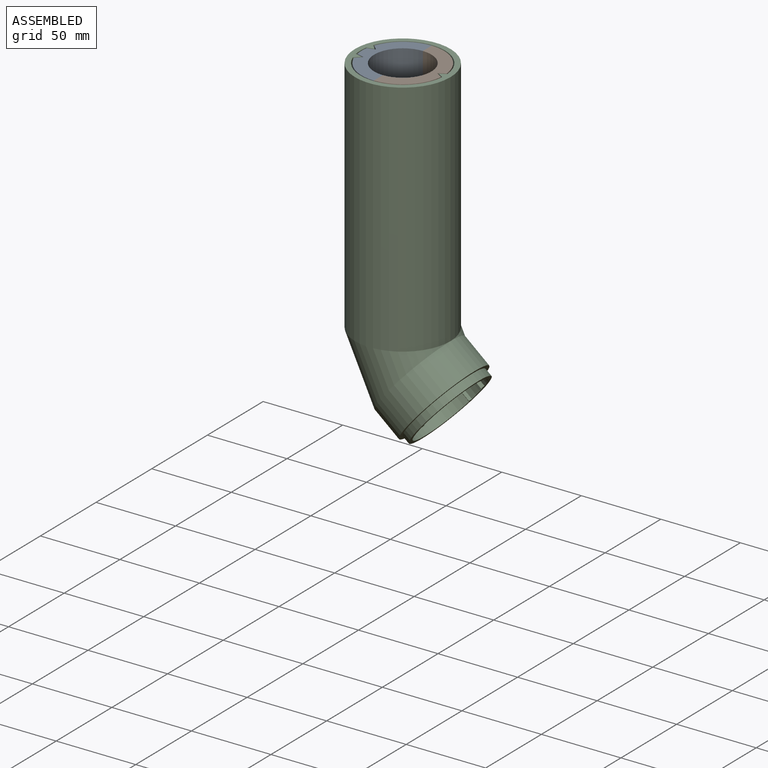
[diagram: assembled view]
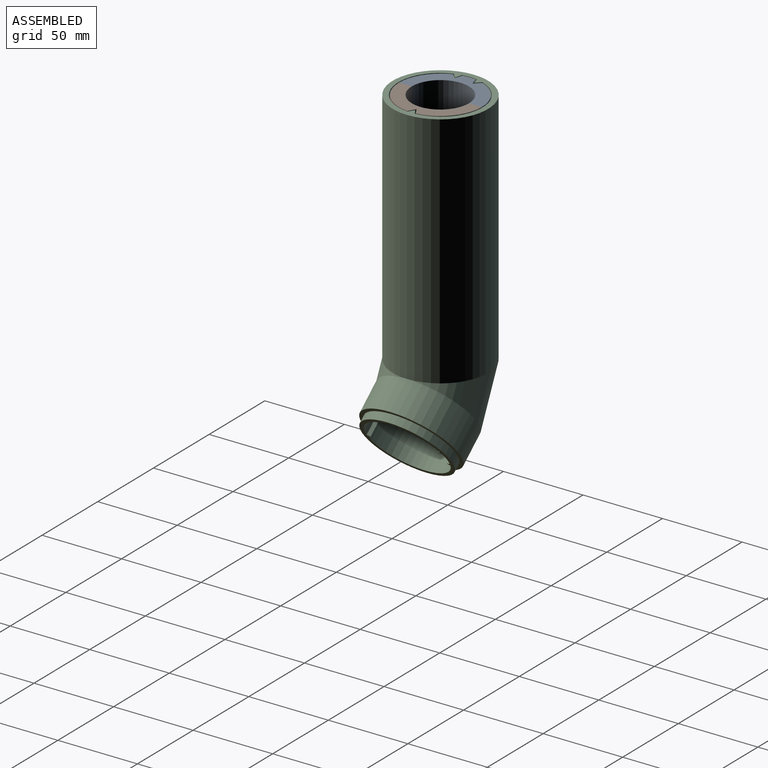
[diagram: assembled view, second angle]
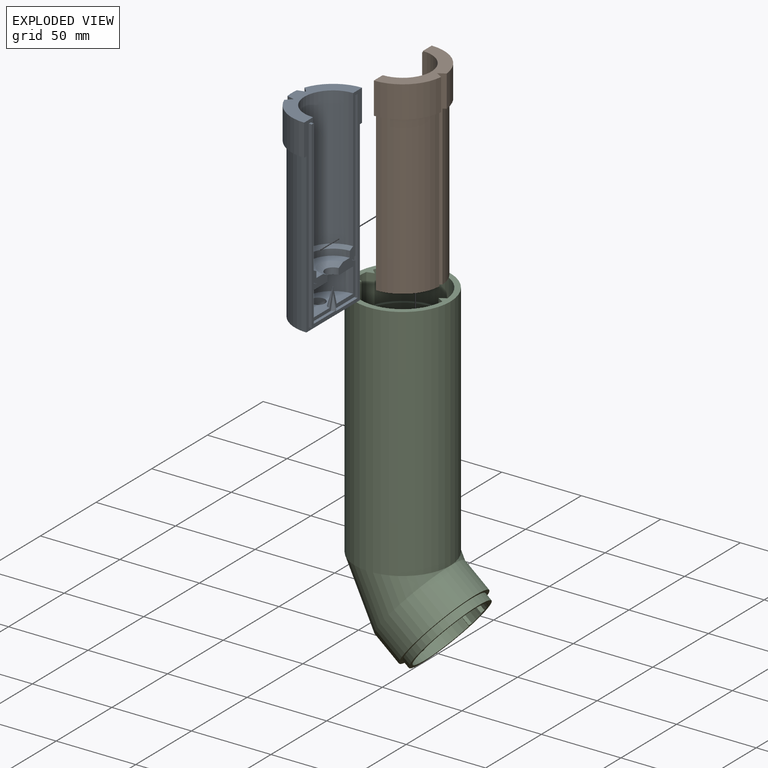
[diagram: exploded view]
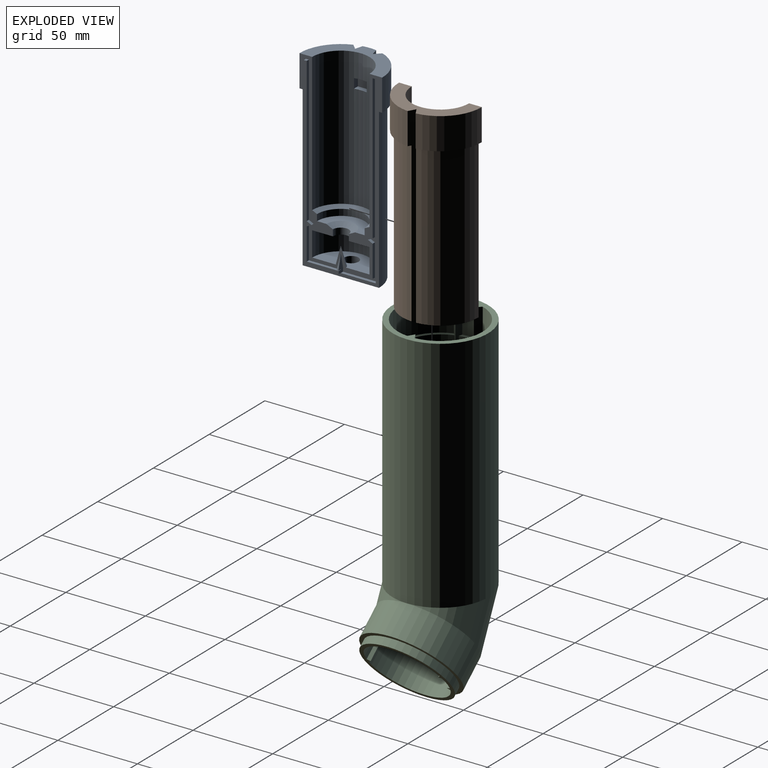
[diagram: exploded view, second angle]
ASSEMBLY  parts=3 mates=2
PART A: 54 faces, bbox 120x52x28.1 mm
  f0: cylinder r=18mm len=87mm, axis (-1,0,0), area 4871.3mm2, adj f1,f9,f16,f48,f49,f50,f51
  f1: plane 52x26mm, normal (1,0,0), area 530mm2, adj f0,f4,f5,f9,f15,f44,f45,f46
  f2: plane 24.34x18.43mm, normal (-1,0,0), area 61.5mm2, adj f6,f9,f15,f46
  f3: plane 9.66x2.49mm, normal (-1,0,0), area 18.3mm2, adj f4,f7,f44,f47
  f4: cylinder r=26mm len=20mm, axis (-1,0,0), area 171mm2, adj f1,f3,f44,f47
  f5: cylinder r=26mm len=24.34mm, axis (-1,0,0), area 630.1mm2, adj f1,f9,f14,f45
  f6: cylinder r=24mm len=100mm, axis (-1,0,0), area 2999.6mm2, adj f2,f8,f9,f46
  f7: cylinder r=24mm len=100mm, axis (-1,0,0), area 972.6mm2, adj f3,f8,f44,f47
  f8: plane 48x24mm, normal (-1,0,0), area 834mm2, adj f6,f7,f9,f13,f44,f45,f46,f47
  f9: plane 120x52mm, normal (0,0,1), area 1405.4mm2, adj f0,f1,f2,f5,f6,f8,f10,f11
  f10: plane 20x2mm, normal (-1,0,0), area 36.9mm2, adj f9,f30,f31,f32
  f11: plane 36x18mm, normal (1,0,0), area 429.2mm2, adj f9,f12,f22,f53
  f12: cone r=3.2mm half-angle=15.5deg, axis (-1,0,0), area 60mm2, adj f9,f11
  f13: cylinder r=24mm len=100mm, axis (-1,0,0), area 2999.6mm2, adj f8,f9,f14,f45
  f14: plane 24.34x18.43mm, normal (-1,0,0), area 61.5mm2, adj f5,f9,f13,f45
  f15: cylinder r=26mm len=24.34mm, axis (-1,0,0), area 630.1mm2, adj f1,f2,f9,f46
  f16: cone r=15mm half-angle=63.4deg, axis (1,0,0), area 173.9mm2, adj f0,f9,f17
  f17: cylinder r=15mm len=30mm, axis (-1,0,0), area 188.5mm2, adj f9,f16,f18
  f18: plane 30x15mm, normal (1,0,0), area 226.2mm2, adj f9,f17,f19
  f19: cone r=5mm half-angle=63.4deg, axis (1,0,0), area 98.3mm2, adj f9,f18,f20
  f20: cylinder r=5mm len=10mm, axis (-1,0,0), area 62.8mm2, adj f9,f19,f21
  f21: plane 36x18mm, normal (-1,0,0), area 469.7mm2, adj f9,f20,f22
  f22: cylinder r=18mm len=36mm, axis (-1,0,0), area 876.5mm2, adj f9,f11,f21
  f23: plane 11x4.1mm, normal (0,-1,0), area 25.7mm2, adj f9,f24,f31,f32,f33,f34,f35,f36
  f24: plane 22x2mm, normal (1,0,0), area 44mm2, adj f9,f23,f25,f31
  f25: plane 116x2mm, normal (0,1,0), area 232mm2, adj f9,f24,f26,f31
  f26: plane 2x2mm, normal (-1,0,0), area 4mm2, adj f9,f25,f27,f31
  f27: plane 91x2mm, normal (0,-1,0), area 182mm2, adj f9,f26,f28,f31
  f28: plane 3x2mm, normal (-0.89,-0.45,0), area 6.7mm2, adj f9,f27,f29,f31
  f29: plane 3x2mm, normal (0.89,-0.45,0), area 6.7mm2, adj f9,f28,f30,f31
  f30: plane 20x2mm, normal (0,-1,0), area 40mm2, adj f9,f10,f29,f31
  f31: plane 116x22mm, normal (0,0,1), area 276.5mm2, adj f10,f23,f24,f25,f26,f27,f28,f29
  f32: cone r=0mm half-angle=12.5deg, axis (-1,0,0), area 14.5mm2, adj f9,f10,f23
  f33: cone r=0mm half-angle=13.4deg, axis (-1,0,0), area 14.9mm2, adj f9,f23,f34
  f34: plane 2.1x2.1mm, normal (-1,0,0), area 3.5mm2, adj f9,f23,f33
  f35: plane 21.9x1.9mm, normal (-1,0,0), area 41.6mm2, adj f9,f23,f42,f43
  f36: plane 20.1x1.9mm, normal (1,0,0), area 38.2mm2, adj f9,f23,f37,f43
  f37: plane 20x1.9mm, normal (0,-1,0), area 38mm2, adj f9,f36,f38,f43
  f38: plane 3x1.9mm, normal (-0.89,-0.45,0), area 6.4mm2, adj f9,f37,f39,f43
  f39: plane 3x1.9mm, normal (0.89,-0.45,0), area 6.4mm2, adj f9,f38,f40,f43
  f40: plane 91x1.9mm, normal (0,-1,0), area 172.9mm2, adj f9,f39,f41,f43
  f41: plane 1.9x1.8mm, normal (1,0,0), area 3.4mm2, adj f9,f40,f42,f43
  f42: plane 115.8x1.9mm, normal (0,1,0), area 220mm2, adj f9,f35,f41,f43
  f43: plane 115.8x21.9mm, normal (0,0,1), area 249.1mm2, adj f23,f35,f36,f37,f38,f39,f40,f41
  f44: plane 120x4.88mm, normal (0,-0.97,-0.26), area 384.9mm2, adj f1,f3,f4,f7,f8,f45
  f45: plane 120x3.57mm, normal (0,0.71,-0.71), area 384.9mm2, adj f1,f5,f8,f13,f14,f44
  f46: plane 120x3.57mm, normal (0,-0.71,-0.71), area 384.9mm2, adj f1,f2,f6,f8,f15,f47
  f47: plane 120x4.88mm, normal (0,0.97,-0.26), area 384.9mm2, adj f1,f3,f4,f7,f8,f46
  f48: plane 6x3.45mm, normal (0,-1,0), area 20.7mm2, adj f0,f49,f51,f52
  f49: plane 8x3.45mm, normal (1,0,0), area 25.2mm2, adj f0,f48,f50,f52
  f50: plane 6x3.45mm, normal (0,1,0), area 20.7mm2, adj f0,f49,f51,f52
  f51: plane 8x3.45mm, normal (-1,0,0), area 25.2mm2, adj f0,f48,f50,f52
  f52: plane 8x6mm, normal (0,0,1), area 48mm2, adj f48,f49,f50,f51
  f53: cylinder r=4.5mm len=9mm, axis (-1,0,0), area 169.6mm2, adj f8,f11
PART B: 49 faces, bbox 120x52x28 mm
  f0: cylinder r=18mm len=87mm, axis (-1,0,0), area 4871.3mm2, adj f5,f6,f13,f43,f44,f45,f46
  f1: plane 25.88x24.58mm, normal (-1,0,0), area 74.6mm2, adj f3,f6,f12,f41
  f2: cylinder r=26mm len=25.88mm, axis (-1,0,0), area 766.2mm2, adj f5,f6,f11,f42
  f3: cylinder r=24mm len=100mm, axis (-1,0,0), area 3627.9mm2, adj f1,f4,f6,f41
  f4: plane 48x23.96mm, normal (-1,0,0), area 837.6mm2, adj f3,f6,f10,f41,f42,f48
  f5: plane 52x25.88mm, normal (1,0,0), area 541.4mm2, adj f0,f2,f6,f12,f41,f42
  f6: plane 120x52mm, normal (0,0,1), area 1405.4mm2, adj f0,f1,f2,f3,f4,f5,f7,f8
  f7: plane 20x2mm, normal (-1,0,0), area 36.9mm2, adj f6,f27,f28,f29
  f8: plane 36x18mm, normal (1,0,0), area 429.2mm2, adj f6,f9,f19,f48
  f9: cone r=3.2mm half-angle=15.5deg, axis (-1,0,0), area 60mm2, adj f6,f8
  f10: cylinder r=24mm len=100mm, axis (-1,0,0), area 3627.9mm2, adj f4,f6,f11,f42
  f11: plane 25.88x24.58mm, normal (-1,0,0), area 74.6mm2, adj f2,f6,f10,f42
  f12: cylinder r=26mm len=25.88mm, axis (-1,0,0), area 766.2mm2, adj f1,f5,f6,f41
  f13: cone r=15mm half-angle=63.4deg, axis (1,0,0), area 173.9mm2, adj f0,f6,f14
  f14: cylinder r=15mm len=30mm, axis (-1,0,0), area 188.5mm2, adj f6,f13,f15
  f15: plane 30x15mm, normal (1,0,0), area 226.2mm2, adj f6,f14,f16
  f16: cone r=5mm half-angle=63.4deg, axis (1,0,0), area 98.3mm2, adj f6,f15,f17
  f17: cylinder r=5mm len=10mm, axis (-1,0,0), area 62.8mm2, adj f6,f16,f18
  f18: plane 36x18mm, normal (-1,0,0), area 469.7mm2, adj f6,f17,f19
  f19: cylinder r=18mm len=36mm, axis (-1,0,0), area 876.5mm2, adj f6,f8,f18
  f20: plane 11x4.1mm, normal (0,-1,0), area 25.7mm2, adj f6,f21,f28,f29,f30,f31,f32,f33
  f21: plane 22x2mm, normal (1,0,0), area 44mm2, adj f6,f20,f22,f28
  f22: plane 116x2mm, normal (0,1,0), area 232mm2, adj f6,f21,f23,f28
  f23: plane 2x2mm, normal (-1,0,0), area 4mm2, adj f6,f22,f24,f28
  f24: plane 91x2mm, normal (0,-1,0), area 182mm2, adj f6,f23,f25,f28
  f25: plane 3x2mm, normal (-0.89,-0.45,0), area 6.7mm2, adj f6,f24,f26,f28
  f26: plane 3x2mm, normal (0.89,-0.45,0), area 6.7mm2, adj f6,f25,f27,f28
  f27: plane 20x2mm, normal (0,-1,0), area 40mm2, adj f6,f7,f26,f28
  f28: plane 116x22mm, normal (0,0,1), area 276.5mm2, adj f7,f20,f21,f22,f23,f24,f25,f26
  f29: cone r=0mm half-angle=12.5deg, axis (-1,0,0), area 14.5mm2, adj f6,f7,f20
  f30: cone r=0mm half-angle=13.4deg, axis (-1,0,0), area 14.9mm2, adj f6,f20,f31
  f31: plane 2.1x2.1mm, normal (-1,0,0), area 3.5mm2, adj f6,f20,f30
  f32: plane 21.9x1.9mm, normal (-1,0,0), area 41.6mm2, adj f6,f20,f39,f40
  f33: plane 20.1x1.9mm, normal (1,0,0), area 38.2mm2, adj f6,f20,f34,f40
  f34: plane 20x1.9mm, normal (0,-1,0), area 38mm2, adj f6,f33,f35,f40
  f35: plane 3x1.9mm, normal (-0.89,-0.45,0), area 6.4mm2, adj f6,f34,f36,f40
  f36: plane 3x1.9mm, normal (0.89,-0.45,0), area 6.4mm2, adj f6,f35,f37,f40
  f37: plane 91x1.9mm, normal (0,-1,0), area 172.9mm2, adj f6,f36,f38,f40
  f38: plane 1.9x1.8mm, normal (1,0,0), area 3.4mm2, adj f6,f37,f39,f40
  f39: plane 115.8x1.9mm, normal (0,1,0), area 220mm2, adj f6,f32,f38,f40
  f40: plane 115.8x21.9mm, normal (0,0,1), area 249.1mm2, adj f20,f32,f33,f34,f35,f36,f37,f38
  f41: plane 120x4.38mm, normal (0,-0.87,-0.5), area 384.9mm2, adj f1,f3,f4,f5,f12,f42
  f42: plane 120x4.38mm, normal (0,0.87,-0.5), area 384.9mm2, adj f2,f4,f5,f10,f11,f41
  f43: plane 6x3.45mm, normal (0,-1,0), area 20.7mm2, adj f0,f44,f46,f47
  f44: plane 8x3.45mm, normal (1,0,0), area 25.2mm2, adj f0,f43,f45,f47
  f45: plane 6x3.45mm, normal (0,1,0), area 20.7mm2, adj f0,f44,f46,f47
  f46: plane 8x3.45mm, normal (-1,0,0), area 25.2mm2, adj f0,f43,f45,f47
  f47: plane 8x6mm, normal (0,0,1), area 48mm2, adj f43,f44,f45,f46
  f48: cylinder r=4.5mm len=9mm, axis (-1,0,0), area 169.6mm2, adj f4,f8
PART C: 42 faces, bbox 82.5x60x210.1 mm
  f0: plane 49.97x38.3mm, normal (0.77,0,-0.64), area 1348.6mm2, adj f23,f24,f25,f26,f27,f28,f29,f30
  f1: plane 32x22mm, normal (0,0,-1), area 450.9mm2, adj f20,f21,f23,f24,f25,f26,f27,f28
  f2: cylinder r=30mm len=150mm, axis (0,0,-1), area 28274.3mm2, adj f6,f22
  f3: cylinder r=26.6mm len=20mm, axis (0,0,-1), area 186.1mm2, adj f6,f11,f12,f15
  f4: cylinder r=26.6mm len=51.5mm, axis (0,0,-1), area 1439.6mm2, adj f6,f7,f13,f17
  f5: cylinder r=26.6mm len=51.5mm, axis (0,0,-1), area 1439.6mm2, adj f6,f8,f10,f19
  f6: plane 60x60mm, normal (0,0,1), area 633.2mm2, adj f2,f3,f4,f5,f7,f8,f10,f11
  f7: plane 120x4mm, normal (-0.5,0.87,0), area 320.2mm2, adj f4,f6,f8,f9,f16,f17
  f8: plane 120x4mm, normal (-0.5,-0.87,0), area 320.2mm2, adj f5,f6,f7,f9,f18,f19
  f9: plane 49x48.97mm, normal (0,0,1), area 1721.8mm2, adj f7,f8,f10,f11,f12,f13,f14,f16
  f10: plane 120x3.27mm, normal (0.71,-0.71,0), area 320.2mm2, adj f5,f6,f9,f11,f18,f19
  f11: plane 120x4.46mm, normal (0.26,0.97,0), area 320.2mm2, adj f3,f6,f9,f10,f14,f15
  f12: plane 120x4.46mm, normal (0.26,-0.97,0), area 320.2mm2, adj f3,f6,f9,f13,f14,f15
  f13: plane 120x3.27mm, normal (0.71,0.71,0), area 320.2mm2, adj f4,f6,f9,f12,f16,f17
  f14: cylinder r=24.5mm len=100mm, axis (0,0,-1), area 1054.9mm2, adj f9,f11,f12,f15
  f15: plane 10.47x2.67mm, normal (0,0,1), area 20.8mm2, adj f3,f11,f12,f14
  f16: cylinder r=24.5mm len=100mm, axis (0,0,-1), area 6827.5mm2, adj f7,f9,f13,f17
  f17: plane 51.5x25.46mm, normal (0,0,1), area 147.3mm2, adj f4,f7,f13,f16
  f18: cylinder r=24.5mm len=100mm, axis (0,0,-1), area 6827.5mm2, adj f8,f9,f10,f19
  f19: plane 51.5x25.46mm, normal (0,0,1), area 147.3mm2, adj f5,f8,f10,f18
  f20: cylinder r=5mm len=30mm, axis (0,0,-1), area 942.5mm2, adj f1,f9
  f21: cylinder r=5mm len=30mm, axis (0,0,-1), area 942.5mm2, adj f1,f9
  f22: torus R=30mm, axis (0,-1,0), area 4934.8mm2, adj f2,f38
  f23: cylinder r=46mm len=35.24mm, axis (0,-1,0), area 401.4mm2, adj f0,f1,f24,f28
  f24: cone r=46mm half-angle=69.4deg, axis (0,1,0), area 566.7mm2, adj f0,f1,f23,f25
  f25: plane 22.98x21mm, normal (0,1,0), area 307.2mm2, adj f0,f1,f24,f26
  f26: cylinder r=14mm len=22mm, axis (0,-1,0), area 268.8mm2, adj f0,f1,f25,f27
  f27: plane 22.98x21mm, normal (0,-1,0), area 307.2mm2, adj f0,f1,f26,f28
  f28: cone r=30mm half-angle=69.4deg, axis (0,-1,0), area 566.7mm2, adj f0,f1,f23,f27
  f29: plane 19.53x16.52mm, normal (0.62,-0.26,0.74), area 57mm2, adj f0,f30,f37,f41
  f30: plane 20.19x17.3mm, normal (-0.45,-0.71,-0.54), area 57mm2, adj f0,f29,f31,f41
  f31: cylinder r=25mm len=48.8mm, axis (-0.77,0,0.64), area 1742.9mm2, adj f0,f30,f32,f41
  f32: plane 19.88x16.94mm, normal (-0.56,0.5,-0.66), area 57mm2, adj f0,f31,f33,f41
  f33: plane 19.88x16.94mm, normal (0.56,0.5,0.66), area 57mm2, adj f0,f32,f34,f41
  f34: cylinder r=25mm len=48.8mm, axis (-0.77,0,0.64), area 1742.9mm2, adj f0,f33,f35,f41
  f35: plane 20.19x17.3mm, normal (0.45,-0.71,0.54), area 57mm2, adj f0,f34,f36,f41
  f36: plane 19.53x16.52mm, normal (-0.62,-0.26,-0.74), area 57mm2, adj f0,f35,f37,f41
  f37: cylinder r=25mm len=26.05mm, axis (-0.77,0,0.64), area 270.2mm2, adj f0,f29,f36,f41
  f38: cylinder r=30mm len=60mm, axis (-0.77,0,0.64), area 3769.9mm2, adj f22,f39
  f39: plane 60x45.96mm, normal (0.77,0,-0.64), area 451.6mm2, adj f38,f40
  f40: cylinder r=27.5mm len=55mm, axis (-0.77,0,0.64), area 863.9mm2, adj f39,f41
  f41: plane 55x42.13mm, normal (0.77,0,-0.64), area 419.2mm2, adj f29,f30,f31,f32,f33,f34,f35,f36
PLACE A rot(axis=(-0.71,0,-0.71),180deg) t=(-8.01,-70.15,-1.19)mm
PLACE B rot(axis=(0,-1,0),90deg) t=(-8.04,-70.15,-1.19)mm
PLACE C t=(-8.07,-70.15,-52.5)mm
MATE fastened B.f0 <-> C.f9  axis (0,0,-1) through (-8.04,-70.15,-47.5)mm
MATE fastened B.f20 <-> A.f23  axis (0,-1,0) through (-8.03,-70.15,-41.64)mm
